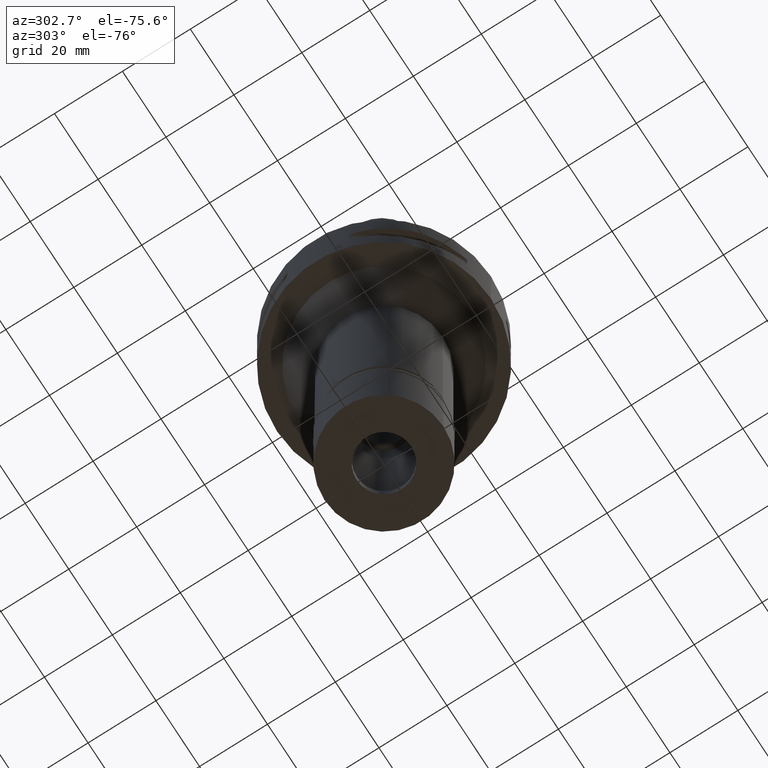
[diagram: clean part render]
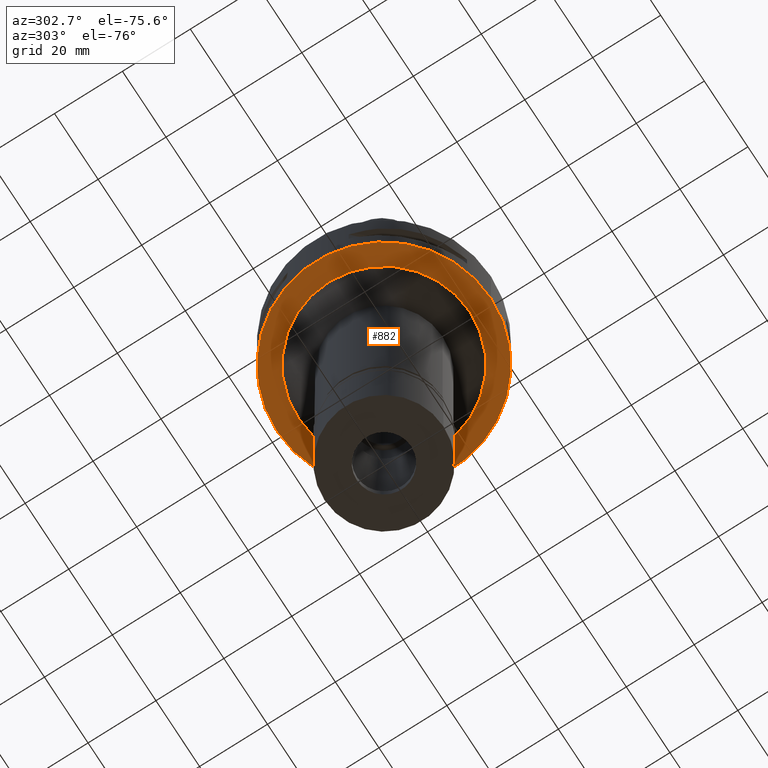
[diagram: same view with one face highlighted and labeled with its STEP entity id]
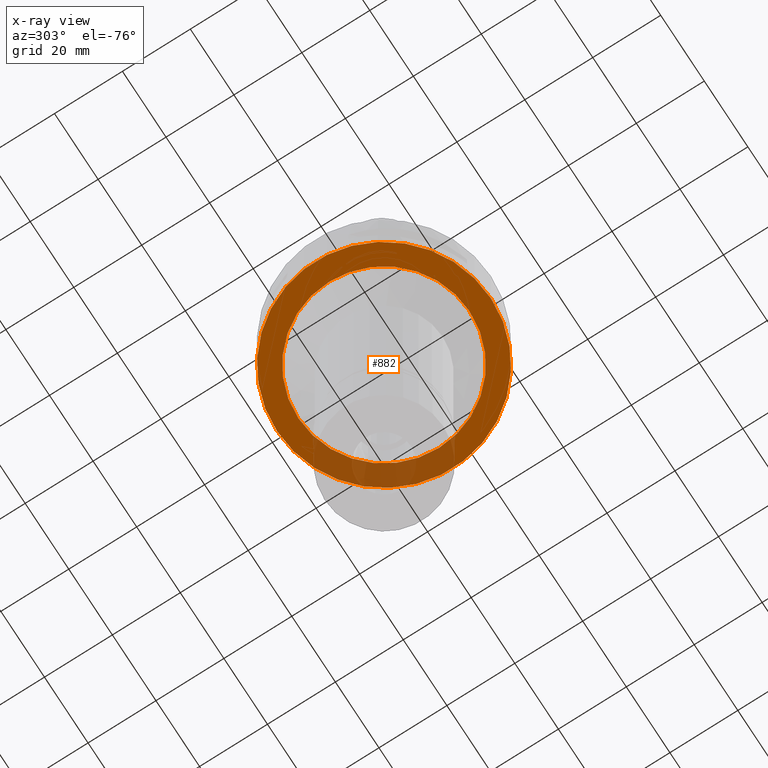
[diagram: x-ray of the same camera — body ghosted, the highlighted face saturated]
A machine part, auxiliary view. The second image highlights one B-rep face of the part: STEP entity #882.
The next image is the same camera in x-ray: the body ghosted, the highlighted face saturated — about 21% of this face is hidden behind the body in this view.
In plain terms, the highlighted planar face has unit normal (0, 0, -1).
Its self-contained STEP definition (entity closure, byte-faithful):
#196 = DIRECTION ( 'NONE',  ( 0.0000000000000000000, 0.0000000000000000000, 1.000000000000000000 ) ) ;
#202 = CARTESIAN_POINT ( 'NONE',  ( 0.0000000000000000000, -31.50000000000000000, -22.00000000000000000 ) ) ;
#208 = DIRECTION ( 'NONE',  ( 0.0000000000000000000, 0.0000000000000000000, 1.000000000000000000 ) ) ;
#313 = AXIS2_PLACEMENT_3D ( 'NONE', #2063, #1681, #366 ) ;
#366 = DIRECTION ( 'NONE',  ( 0.0000000000000000000, 1.000000000000000000, 0.0000000000000000000 ) ) ;
#666 = CIRCLE ( 'NONE', #3958, 25.25000000000000000 ) ;
#882 = ADVANCED_FACE ( 'NONE', ( #2044, #2800 ), #4375, .T. ) ;
#906 = CARTESIAN_POINT ( 'NONE',  ( 0.0000000000000000000, 0.0000000000000000000, -22.00000000000000000 ) ) ;
#1005 = AXIS2_PLACEMENT_3D ( 'NONE', #2118, #196, #2565 ) ;
#1172 = CARTESIAN_POINT ( 'NONE',  ( 0.0000000000000000000, 0.0000000000000000000, -22.00000000000000000 ) ) ;
#1194 = EDGE_CURVE ( 'NONE', #4701, #3579, #2319, .T. ) ;
#1238 = AXIS2_PLACEMENT_3D ( 'NONE', #1172, #4705, #1277 ) ;
#1277 = DIRECTION ( 'NONE',  ( 0.0000000000000000000, -1.000000000000000000, 0.0000000000000000000 ) ) ;
#1302 = ORIENTED_EDGE ( 'NONE', *, *, #3750, .F. ) ;
#1380 = CARTESIAN_POINT ( 'NONE',  ( 0.0000000000000000000, 25.25000000000000000, -22.00000000000000000 ) ) ;
#1555 = VERTEX_POINT ( 'NONE', #1380 ) ;
#1681 = DIRECTION ( 'NONE',  ( 0.0000000000000000000, 0.0000000000000000000, -1.000000000000000000 ) ) ;
#1780 = DIRECTION ( 'NONE',  ( 0.0000000000000000000, 1.000000000000000000, 0.0000000000000000000 ) ) ;
#1918 = EDGE_LOOP ( 'NONE', ( #4448, #3869 ) ) ;
#1935 = EDGE_CURVE ( 'NONE', #1555, #3263, #4348, .T. ) ;
#2044 = FACE_OUTER_BOUND ( 'NONE', #4450, .T. ) ;
#2063 = CARTESIAN_POINT ( 'NONE',  ( 0.0000000000000000000, 0.0000000000000000000, -22.00000000000000000 ) ) ;
#2118 = CARTESIAN_POINT ( 'NONE',  ( 0.0000000000000000000, 1.291390049700999962E-14, -22.00000000000000000 ) ) ;
#2170 = CARTESIAN_POINT ( 'NONE',  ( 0.0000000000000000000, 1.291390049700999962E-14, -22.00000000000000000 ) ) ;
#2319 = CIRCLE ( 'NONE', #4514, 31.50000000000000000 ) ;
#2565 = DIRECTION ( 'NONE',  ( 0.0000000000000000000, -1.000000000000000000, 0.0000000000000000000 ) ) ;
#2725 = ORIENTED_EDGE ( 'NONE', *, *, #1194, .F. ) ;
#2800 = FACE_BOUND ( 'NONE', #1918, .T. ) ;
#2877 = DIRECTION ( 'NONE',  ( 0.0000000000000000000, -1.000000000000000000, 0.0000000000000000000 ) ) ;
#3263 = VERTEX_POINT ( 'NONE', #3872 ) ;
#3403 = CARTESIAN_POINT ( 'NONE',  ( 0.0000000000000000000, 31.50000000000000000, -22.00000000000000000 ) ) ;
#3413 = EDGE_CURVE ( 'NONE', #3263, #1555, #666, .T. ) ;
#3579 = VERTEX_POINT ( 'NONE', #202 ) ;
#3724 = CIRCLE ( 'NONE', #1005, 31.50000000000000000 ) ;
#3750 = EDGE_CURVE ( 'NONE', #3579, #4701, #3724, .T. ) ;
#3869 = ORIENTED_EDGE ( 'NONE', *, *, #3413, .F. ) ;
#3872 = CARTESIAN_POINT ( 'NONE',  ( 0.0000000000000000000, -25.25000000000000000, -22.00000000000000000 ) ) ;
#3958 = AXIS2_PLACEMENT_3D ( 'NONE', #906, #4009, #2877 ) ;
#4009 = DIRECTION ( 'NONE',  ( 0.0000000000000000000, 0.0000000000000000000, -1.000000000000000000 ) ) ;
#4348 = CIRCLE ( 'NONE', #313, 25.25000000000000000 ) ;
#4375 = PLANE ( 'NONE',  #1238 ) ;
#4448 = ORIENTED_EDGE ( 'NONE', *, *, #1935, .F. ) ;
#4450 = EDGE_LOOP ( 'NONE', ( #2725, #1302 ) ) ;
#4514 = AXIS2_PLACEMENT_3D ( 'NONE', #2170, #208, #1780 ) ;
#4701 = VERTEX_POINT ( 'NONE', #3403 ) ;
#4705 = DIRECTION ( 'NONE',  ( 0.0000000000000000000, 0.0000000000000000000, -1.000000000000000000 ) ) ;